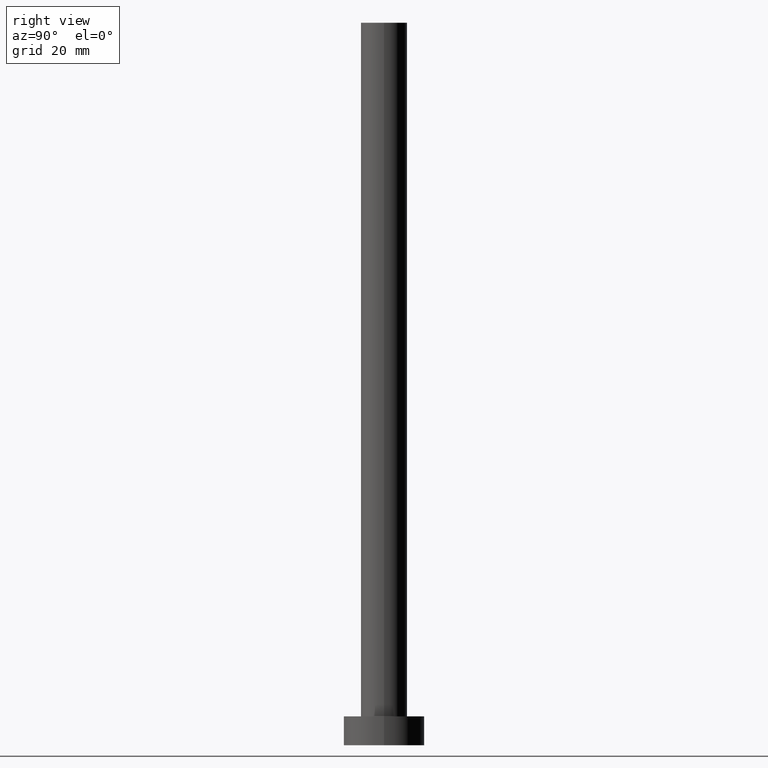
[diagram: clean part render]
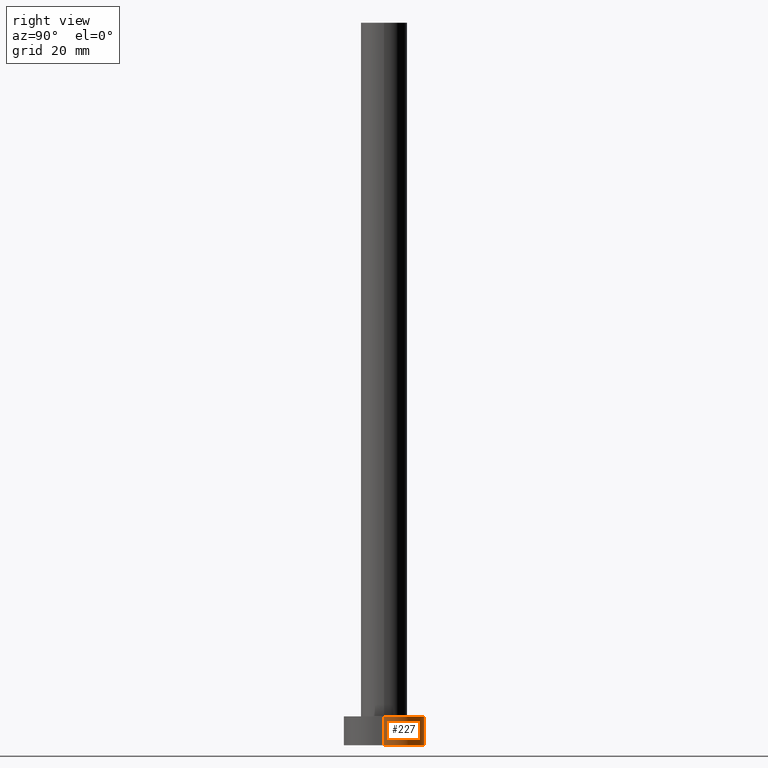
[diagram: same view with one face highlighted and labeled with its STEP entity id]
A machine part, right view. The second image highlights one B-rep face of the part: STEP entity #227.
In plain terms, the highlighted cylindrical surface (partial cylindrical patch) has radius 7 mm, axis along (-0, -0, -1).
Its self-contained STEP definition (entity closure, byte-faithful):
#7 = CARTESIAN_POINT ( 'NONE',  ( 0.000000000000000000, 0.000000000000000000, 0.000000000000000000 ) ) ;
#13 = CARTESIAN_POINT ( 'NONE',  ( -7.000000000000000000, 0.000000000000000000, 0.000000000000000000 ) ) ;
#14 = CIRCLE ( 'NONE', #196, 7.000000000000000000 ) ;
#21 = ORIENTED_EDGE ( 'NONE', *, *, #160, .F. ) ;
#24 = CIRCLE ( 'NONE', #47, 7.000000000000000000 ) ;
#28 = DIRECTION ( 'NONE',  ( 0.000000000000000000, 0.000000000000000000, 1.000000000000000000 ) ) ;
#29 = VERTEX_POINT ( 'NONE', #199 ) ;
#31 = DIRECTION ( 'NONE',  ( 0.000000000000000000, 0.000000000000000000, 1.000000000000000000 ) ) ;
#32 = CARTESIAN_POINT ( 'NONE',  ( 0.000000000000000000, 0.000000000000000000, 5.000000000000000000 ) ) ;
#37 = EDGE_LOOP ( 'NONE', ( #83, #164, #137, #21 ) ) ;
#47 = AXIS2_PLACEMENT_3D ( 'NONE', #239, #28, #142 ) ;
#50 = DIRECTION ( 'NONE',  ( -1.000000000000000000, 0.000000000000000000, 0.000000000000000000 ) ) ;
#62 = EDGE_CURVE ( 'NONE', #29, #194, #14, .T. ) ;
#65 = EDGE_CURVE ( 'NONE', #157, #177, #24, .T. ) ;
#67 = CARTESIAN_POINT ( 'NONE',  ( 7.000000000000000000, 8.572527594031473190E-16, 5.000000000000000000 ) ) ;
#72 = CYLINDRICAL_SURFACE ( 'NONE', #190, 7.000000000000000000 ) ;
#83 = ORIENTED_EDGE ( 'NONE', *, *, #65, .F. ) ;
#94 = LINE ( 'NONE', #226, #249 ) ;
#97 = DIRECTION ( 'NONE',  ( -0.000000000000000000, -0.000000000000000000, -1.000000000000000000 ) ) ;
#111 = DIRECTION ( 'NONE',  ( -0.000000000000000000, -0.000000000000000000, -1.000000000000000000 ) ) ;
#137 = ORIENTED_EDGE ( 'NONE', *, *, #62, .T. ) ;
#142 = DIRECTION ( 'NONE',  ( 1.000000000000000000, 0.000000000000000000, 0.000000000000000000 ) ) ;
#154 = CARTESIAN_POINT ( 'NONE',  ( 7.000000000000000000, 8.572527594031473190E-16, 5.000000000000000000 ) ) ;
#157 = VERTEX_POINT ( 'NONE', #67 ) ;
#160 = EDGE_CURVE ( 'NONE', #177, #194, #94, .T. ) ;
#162 = DIRECTION ( 'NONE',  ( 1.000000000000000000, 0.000000000000000000, 0.000000000000000000 ) ) ;
#164 = ORIENTED_EDGE ( 'NONE', *, *, #209, .T. ) ;
#177 = VERTEX_POINT ( 'NONE', #231 ) ;
#189 = DIRECTION ( 'NONE',  ( -0.000000000000000000, -0.000000000000000000, -1.000000000000000000 ) ) ;
#190 = AXIS2_PLACEMENT_3D ( 'NONE', #32, #111, #50 ) ;
#194 = VERTEX_POINT ( 'NONE', #13 ) ;
#196 = AXIS2_PLACEMENT_3D ( 'NONE', #7, #31, #162 ) ;
#199 = CARTESIAN_POINT ( 'NONE',  ( 7.000000000000000000, 8.572527594031473190E-16, 0.000000000000000000 ) ) ;
#209 = EDGE_CURVE ( 'NONE', #157, #29, #245, .T. ) ;
#218 = VECTOR ( 'NONE', #97, 1000.000000000000000 ) ;
#226 = CARTESIAN_POINT ( 'NONE',  ( -7.000000000000000000, 0.000000000000000000, 5.000000000000000000 ) ) ;
#227 = ADVANCED_FACE ( 'NONE', ( #244 ), #72, .T. ) ;
#231 = CARTESIAN_POINT ( 'NONE',  ( -7.000000000000000000, 0.000000000000000000, 5.000000000000000000 ) ) ;
#239 = CARTESIAN_POINT ( 'NONE',  ( 0.000000000000000000, 0.000000000000000000, 5.000000000000000000 ) ) ;
#244 = FACE_OUTER_BOUND ( 'NONE', #37, .T. ) ;
#245 = LINE ( 'NONE', #154, #218 ) ;
#249 = VECTOR ( 'NONE', #189, 1000.000000000000000 ) ;